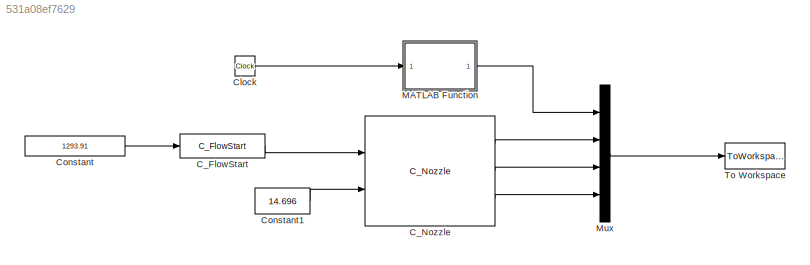
MODEL slx_531a08ef7629
KIND model
CONFIG AbsTol = auto
CONFIG EnableMultiTasking = on
CONFIG FixedStep = auto
CONFIG MaxStep = auto
CONFIG MinStep = auto
CONFIG RelTol = 1e-3
CONFIG SampleTimeConstraint = Unconstrained
CONFIG Solver = ode45
CONFIG SolverName = ode45
CONFIG StartTime = 0.0
CONFIG StopTime = 10.0
BLOCK [Reference] C_FlowStart  REF=Lib_TurboC_FlowStart_TMATSC/C_FlowStart
  Ports = [1, 1]
  SourceBlock = Lib_TurboC_FlowStart_TMATSC/C_FlowStart
  SourceType = TMATS: Flow Start Library Block, cantera
BLOCK [Reference] C_Nozzle  REF=Lib_TurboC_Nozzle_TMATSC/C_Nozzle
  Ports = [2, 3]
  SourceBlock = Lib_TurboC_Nozzle_TMATSC/C_Nozzle
  SourceType = TMATS: Nozzle Library Block, cantera
BLOCK [Clock] Clock
BLOCK [Constant] Constant
  Value = 1293.91
BLOCK [Constant] Constant1
  Value = 14.696
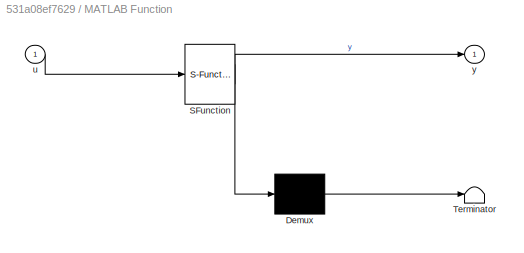
BLOCK [SubSystem] MATLAB Function
  ErrorFcn = Stateflow.Translate.translate
  PermitHierarchicalResolution = ExplicitOnly
  Ports = [1, 1]
  RequestExecContextInheritance = off
  SFBlockType = MATLAB Function
  TreatAsAtomicUnit = on
BLOCK [Demux] MATLAB Function/ Demux 
  Outputs = 1
  Ports = [1, 1]
BLOCK [S-Function] MATLAB Function/ SFunction 
  EnableBusSupport = off
  FunctionName = sf_sfun
  PortCounts = [1 2]
  Ports = [1, 2]
  SFcnIsStateOwnerBlock = off
  SFunctionDeploymentMode = off
  Tag = Stateflow S-Function 2
BLOCK [Terminator] MATLAB Function/ Terminator 
BLOCK [Inport] MATLAB Function/u
  IconDisplay = Port number
BLOCK [Outport] MATLAB Function/y
  IconDisplay = Port number
BLOCK [Mux] Mux
  DisplayOption = bar
  Ports = [4, 1]
BLOCK [ToWorkspace] To Workspace
  MaxDataPoints = inf
  Ports = [1]
  SampleTime = -1
  SaveFormat = Timeseries
  VariableName = simout
LINE C_FlowStart:1 -> C_Nozzle:1
LINE C_Nozzle:1 -> Mux:2
LINE C_Nozzle:2 -> Mux:3
LINE C_Nozzle:3 -> Mux:4
LINE Clock:1 -> MATLAB Function:1
LINE Constant1:1 -> C_Nozzle:2
LINE Constant:1 -> C_FlowStart:1
LINE MATLAB Function:1 -> Mux:1
LINE Mux:1 -> To Workspace:1
CHART MATLAB Function states=1 transitions=1
  STATE_LABEL 'eML_blk_kernel()'
  STATE_LABEL "SCRIPT:\nfunction y = fcn(u)\n%#codegen\neml.extrinsic('set_param');\nif u < 3\n   set_param('TestNozzleUnChoked/C_Nozzle','IDes_M','0');\nelseif u< 6 \n   set_param('TestNozzleUnChoked/C_Nozzle','IDes_M','1'); \nelse \n   set_param('TestNozzleUnChoked/C_Nozzle','IDes_M','2'); \nend    \ny = u;"
